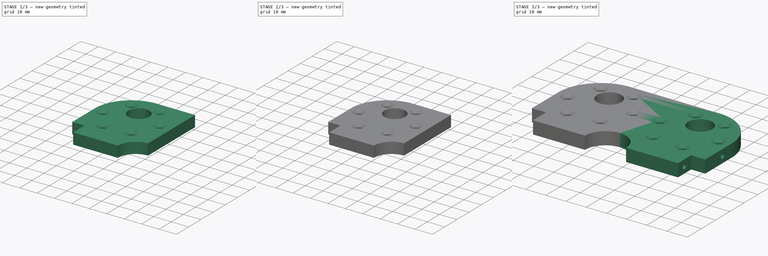
[diagram: build sequence overview — one tinted view per stage of 3, left to right]
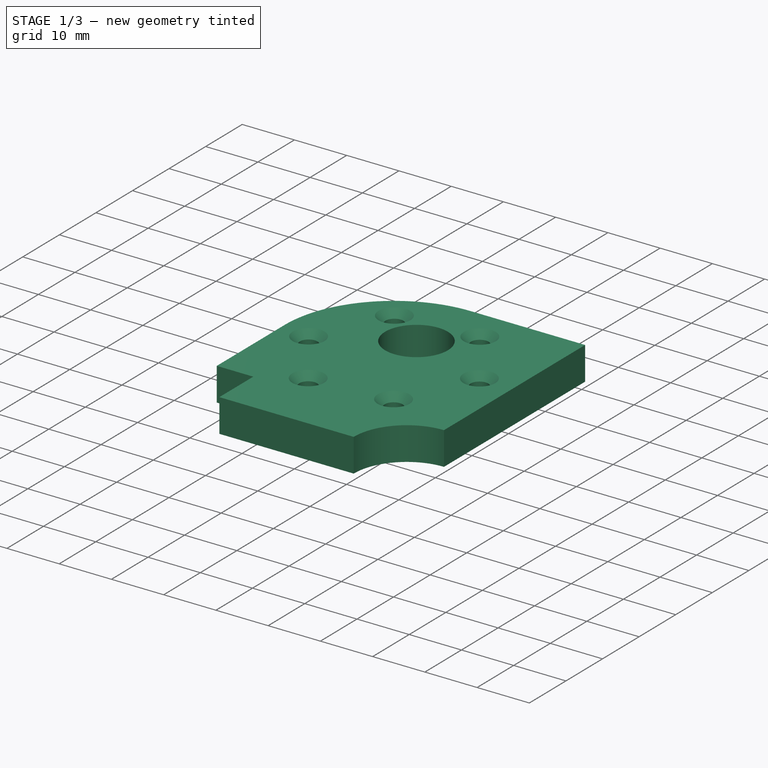
[diagram: stage 1 of 3 — iso view after this stage's code; geometry added in this stage tinted green]
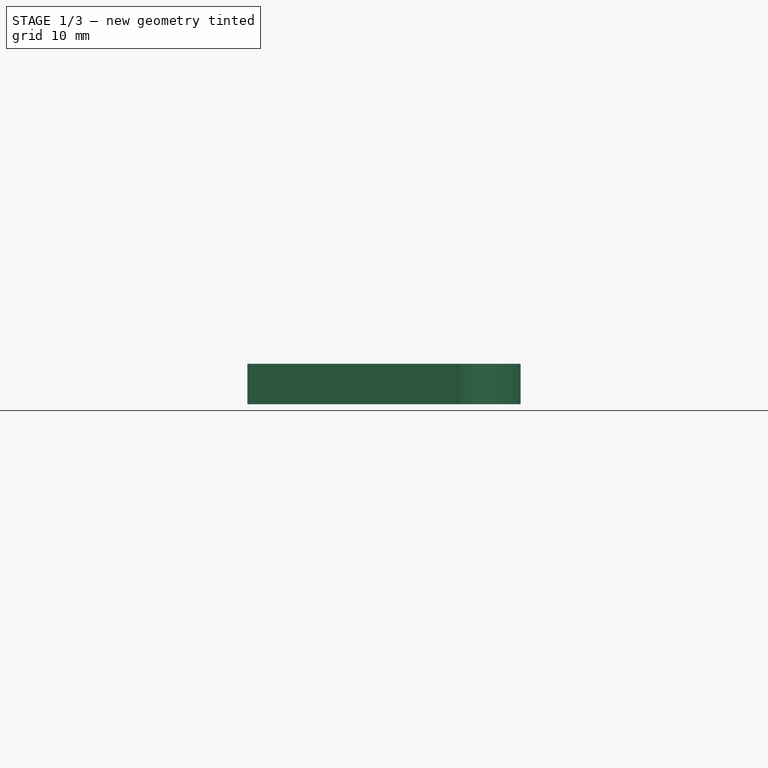
[diagram: stage 1 of 3 — front view after this stage's code; geometry added in this stage tinted green]
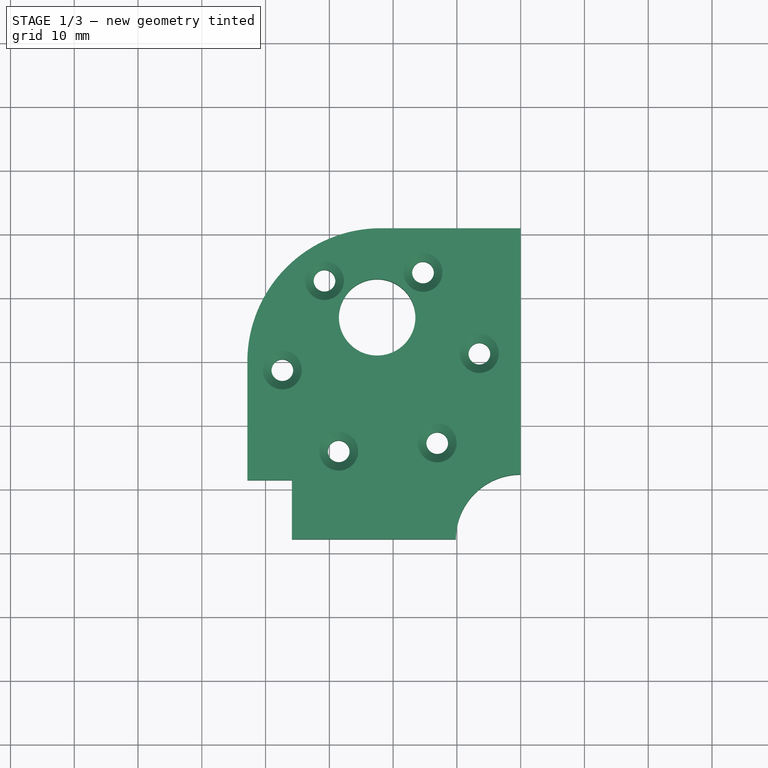
[diagram: stage 1 of 3 — top view after this stage's code; geometry added in this stage tinted green]
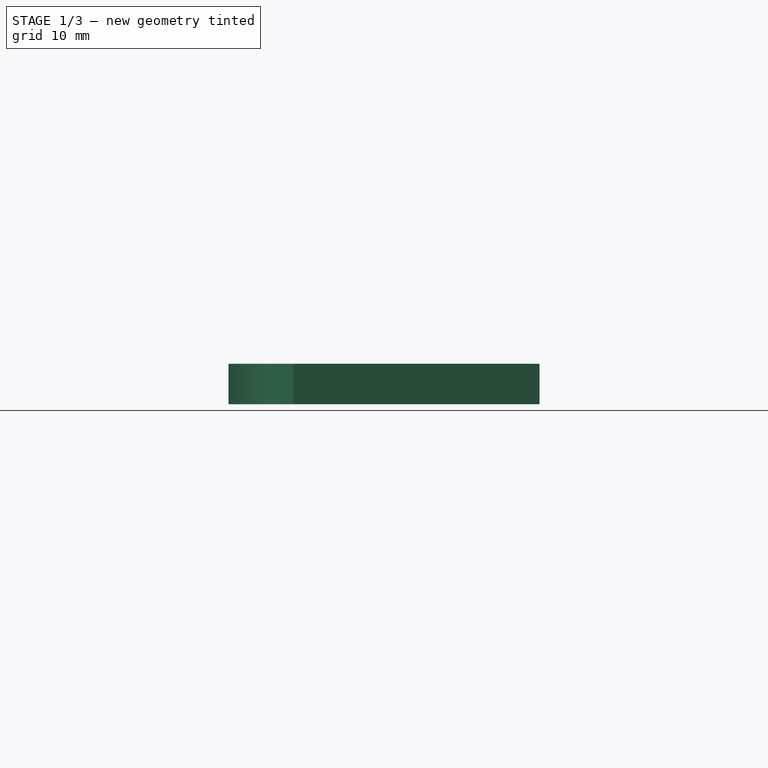
[diagram: stage 1 of 3 — right view after this stage's code; geometry added in this stage tinted green]
FCSTD DOCUMENT  (FreeCAD 1.0R39109 (Git))
Label: rear bracket
License: All rights reserved
LicenseURL: https://en.wikipedia.org/wiki/All_rights_reserved
objects: Sketcher::SketchObject×5, PartDesign::Hole×4, PartDesign::Pad×1, PartDesign::Mirrored×1, PartDesign::Body×1
note: 28 computed .brp shape members not serialized (recipe doc carries the construction recipe); baked Part::Feature solids carry a one-line shape summary decoded from their .brp

FEATURE [Sketcher::SketchObject] Sketch
  ArcFitTolerance = 1e-06
  AttachmentSupport = -> [XY_Plane]
  FullyConstrained = true
  MakeInternals = false
  MapMode = 5
  sketch-geometry (11):
    g0: Circle [constr] CenterX=-21.9225 CenterY=0 CenterZ=0 NormalX=0 NormalY=0 NormalZ=1 AngleXU=0 Radius=18.4
    g1: LineSegment StartX=-35.8775 StartY=-27.813 StartZ=0 EndX=-35.8775 EndY=-18.542 EndZ=0
    g2: LineSegment StartX=-35.8775 StartY=-18.542 StartZ=0 EndX=-42.8625 EndY=-18.542 EndZ=0
    g3: LineSegment StartX=-42.8625 StartY=-18.542 StartZ=0 EndX=-42.8625 EndY=3.6e-15 EndZ=0
    g4: ArcOfCircle CenterX=-21.9225 CenterY=0 CenterZ=0 NormalX=0 NormalY=0 NormalZ=1 AngleXU=0 Radius=20.94 StartAngle=1.5708 EndAngle=3.14159
    g5: LineSegment StartX=-21.9225 StartY=20.94 StartZ=0 EndX=0 EndY=20.94 EndZ=0
    g6: Circle CenterX=-22.5044 CenterY=6.97577 CenterZ=0 NormalX=0 NormalY=0 NormalZ=1 AngleXU=0 Radius=6
    g7: LineSegment [constr] StartX=-22.5044 StartY=6.97577 StartZ=0 EndX=-58.42 EndY=6.97577 EndZ=0
    g8: LineSegment StartX=-35.8775 StartY=-27.813 StartZ=0 EndX=-10.16 EndY=-27.813 EndZ=0
    g9: ArcOfCircle CenterX=0 CenterY=-27.813 CenterZ=0 NormalX=0 NormalY=0 NormalZ=1 AngleXU=0 Radius=10.16 StartAngle=1.5708 EndAngle=3.14159
    g10: LineSegment StartX=0 StartY=20.94 StartZ=0 EndX=0 EndY=-17.653 EndZ=0
  constraints (33):
    c: PointOnObject(g0,g-1)
    c: Vertical(g1)
    c: Coincident(g2,g1)
    c: Horizontal(g2)
    c: Coincident(g3,g2)
    c: PointOnObject(g3,g-1)
    c: Vertical(g3)
    c: Coincident(g4,g3)
    c: PointOnObject(g5,g-2)
    c: Horizontal(g5)
    c: Coincident(g7,g6)
    c: Horizontal(g7)
    c: DistanceX(g7,g-1) = 58.42
    c: DistanceX(g7,g7) = 35.9156
    c: Coincident(g8,g1)
    c: Horizontal(g8)
    c: DistanceX(g2,g2) = 6.985
    c: DistanceY(g1,g1) = 9.271
    c: Diameter(g6) = 12
    c: Distance(g6,g0) = 7
    c: Tangent(g5,g4) = 1.5708
    c: Distance(g-2,g1) = 35.8775
    c: Diameter(g0) = 36.8
    c: Distance(g0,g4) = 2.54
    c: Distance(g0,g2) = 18.542
    c: Coincident(g8,g9)
    c: PointOnObject(g9,g8)
    c: Coincident(g4,g0)
    c: Coincident(g10,g5)
    c: Coincident(g10,g9)
    c: Vertical(g10)
    c: Radius(g9) = 10.16
    c: PointOnObject(g9,g-2)
FEATURE [PartDesign::Pad] Pad
  Direction = (0,0,1)
  Length = 6.35
  Length2 = 10
  Profile = -> Sketch
  ReferenceAxis = -> Sketch [N_Axis]
  Refine = true
  Suppressed = false
  Type = 0
FEATURE [Sketcher::SketchObject] Sketch002
  ArcFitTolerance = 1e-06
  FullyConstrained = true
  MakeInternals = false
  MapMode = 5
  Placement = pos=(-42.8625,0,0) rot=(0.57735,-0.57735,-0.57735;2.0944rad)
  sketch-geometry (3):
    g0: Circle CenterX=6.28849 CenterY=3.175 CenterZ=0 NormalX=0 NormalY=0 NormalZ=1 AngleXU=0 Radius=1.5
    g1: LineSegment [constr] StartX=6.28849 StartY=6.35 StartZ=0 EndX=6.28849 EndY=0 EndZ=0
    g2: GeomPoint [constr] X=1.28849 Y=4.7 Z=0
  constraints (7):
    c: Diameter(g0) = 3
    c: PointOnObject(g1,g-4)
    c: PointOnObject(g1,g-1)
    c: Vertical(g1)
    c: Symmetric(g1,g1,g0)
    c: Symmetric(g-5,g-5,g2)
    c: Distance(g2,g1) = 5
FEATURE [Sketcher::SketchObject] Sketch001
  ArcFitTolerance = 1e-06
  AttachmentSupport = -> [Pad]
  ExternalGeometry = -> [Pad]
  FullyConstrained = true
  MakeInternals = false
  MapMode = 5
  Placement = pos=(0,0,6.35) rot=(0,0,1;0rad)
  sketch-geometry (16):
    g0: Circle [constr] CenterX=-21.9225 CenterY=0 CenterZ=0 NormalX=0 NormalY=0 NormalZ=1 AngleXU=0 Radius=15.5
    g1: LineSegment [constr] StartX=-21.9225 StartY=20.94 StartZ=0 EndX=-21.9225 EndY=0 EndZ=0
    g2: LineSegment [constr] StartX=-15.3152 StartY=14.0212 StartZ=0 EndX=-30.7615 EndY=12.7327 EndZ=0
    g3: LineSegment [constr] StartX=-30.7615 StartY=12.7327 StartZ=0 EndX=-37.3689 EndY=-1.28849 EndZ=0
    g4: LineSegment [constr] StartX=-37.3689 StartY=-1.28849 StartZ=0 EndX=-28.5298 EndY=-14.0212 EndZ=0
    g5: LineSegment [constr] StartX=-28.5298 StartY=-14.0212 StartZ=0 EndX=-13.0835 EndY=-12.7327 EndZ=0
    g6: LineSegment [constr] StartX=-13.0835 StartY=-12.7327 StartZ=0 EndX=-6.47615 EndY=1.28849 EndZ=0
    g7: LineSegment [constr] StartX=-6.47615 StartY=1.28849 StartZ=0 EndX=-15.3152 EndY=14.0212 EndZ=0
    g8: Circle [constr] CenterX=-21.9225 CenterY=0 CenterZ=0 NormalX=0 NormalY=0 NormalZ=1 AngleXU=0 Radius=15.5
    g9: LineSegment [constr] StartX=-21.9225 StartY=0 StartZ=0 EndX=-23.0384 EndY=13.3769 EndZ=0
    g10: Circle CenterX=-30.7615 CenterY=12.7327 CenterZ=0 NormalX=0 NormalY=0 NormalZ=1 AngleXU=0 Radius=1.5
    g11: Circle CenterX=-15.3152 CenterY=14.0212 CenterZ=0 NormalX=0 NormalY=0 NormalZ=1 AngleXU=0 Radius=1.5
    g12: Circle CenterX=-6.47615 CenterY=1.28849 CenterZ=0 NormalX=0 NormalY=0 NormalZ=1 AngleXU=0 Radius=1.5
    g13: Circle CenterX=-13.0835 CenterY=-12.7327 CenterZ=0 NormalX=0 NormalY=0 NormalZ=1 AngleXU=0 Radius=1.5
    g14: Circle CenterX=-28.5298 CenterY=-14.0212 CenterZ=0 NormalX=0 NormalY=0 NormalZ=1 AngleXU=0 Radius=1.5
    g15: Circle CenterX=-37.3689 CenterY=-1.28849 CenterZ=0 NormalX=0 NormalY=0 NormalZ=1 AngleXU=0 Radius=1.5
  constraints (36):
    c: PointOnObject(g0,g-1)
    c: Coincident(g1,g-4)
    c: Coincident(g1,g0)
    c: Vertical(g1)
    c: Diameter(g0) = 31
    c: Coincident(g2,g3)
    c: Coincident(g3,g4)
    c: Coincident(g4,g5)
    c: Coincident(g5,g6)
    c: Coincident(g6,g7)
    c: Coincident(g7,g2)
    c: Equal(g2, g3-g7) x5
    c: PointOnObject(g2,g8)
    c: PointOnObject(g3,g8)
    c: PointOnObject(g4,g8)
    c: PointOnObject(g5,g8)
    c: PointOnObject(g6,g8)
    c: PointOnObject(g7,g8)
    c: Coincident(g8,g0)
    c: PointOnObject(g7,g0)
    c: Coincident(g9,g0)
    c: PointOnObject(g9,g2)
    c: PointOnObject(g-6,g9)
    c: Perpendicular(g9,g2)
    c: Coincident(g10,g2)
    c: Coincident(g11,g2)
    c: Coincident(g13,g5)
    c: Coincident(g14,g4)
    c: Coincident(g15,g3)
    c: Equal(g10,g11)
    c: Equal(g14,g15)
    c: Equal(g15,g10)
    c: Equal(g12,g11)
    c: Equal(g13,g12)
    c: Diameter(g11) = 3
    c: Coincident(g12,g6)
FEATURE [PartDesign::Hole] Hole
  BaseFeature = -> Pad
  CustomThreadClearance = 0
  Depth = 143.323
  DepthType = 1
  Diameter = 3.4
  DrillForDepth = false
  DrillPoint = 1
  DrillPointAngle = 118
  HoleCutCountersinkAngle = 90
  HoleCutCustomValues = false
  HoleCutDepth = 0
  HoleCutDiameter = 6.1
  HoleCutType = 2
  ModelThread = false
  Profile = -> Sketch001
  Refine = true
  Suppressed = false
  Tapered = false
  TaperedAngle = 90
  ThreadClass = 0
  ThreadDepth = 143.323
  ThreadDepthType = 0
  ThreadDirection = 0
  ThreadFit = 0
  ThreadSize = 9
  ThreadType = 1
  Threaded = false
  UseCustomThreadClearance = false
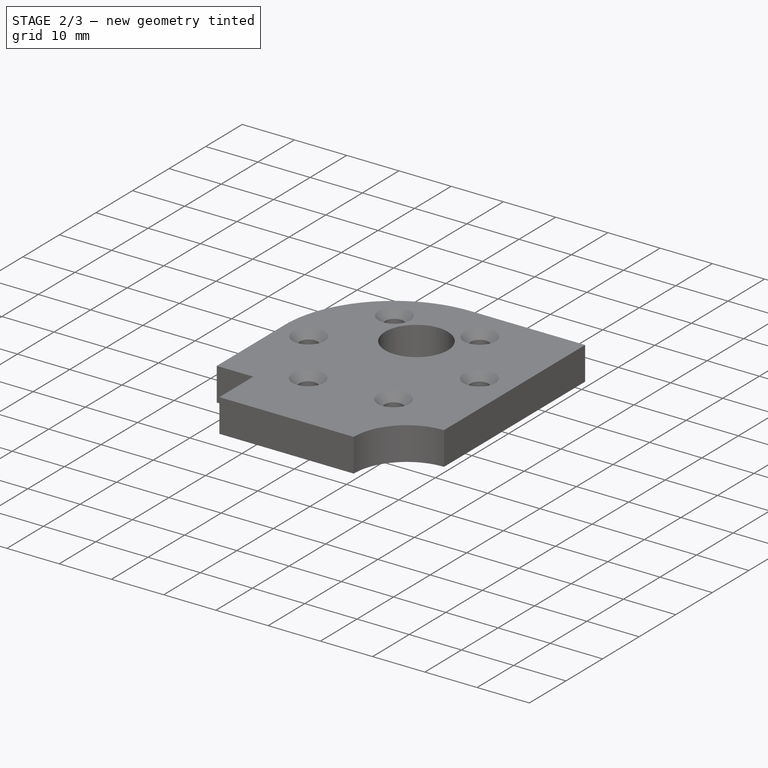
[diagram: stage 2 of 3 — iso view after this stage's code; geometry added in this stage tinted green]
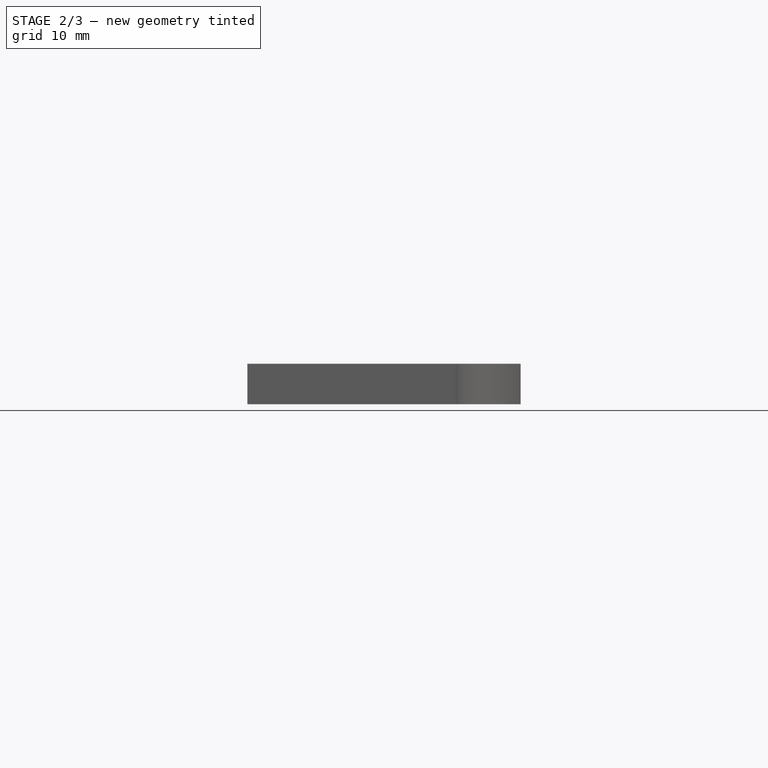
[diagram: stage 2 of 3 — front view after this stage's code; geometry added in this stage tinted green]
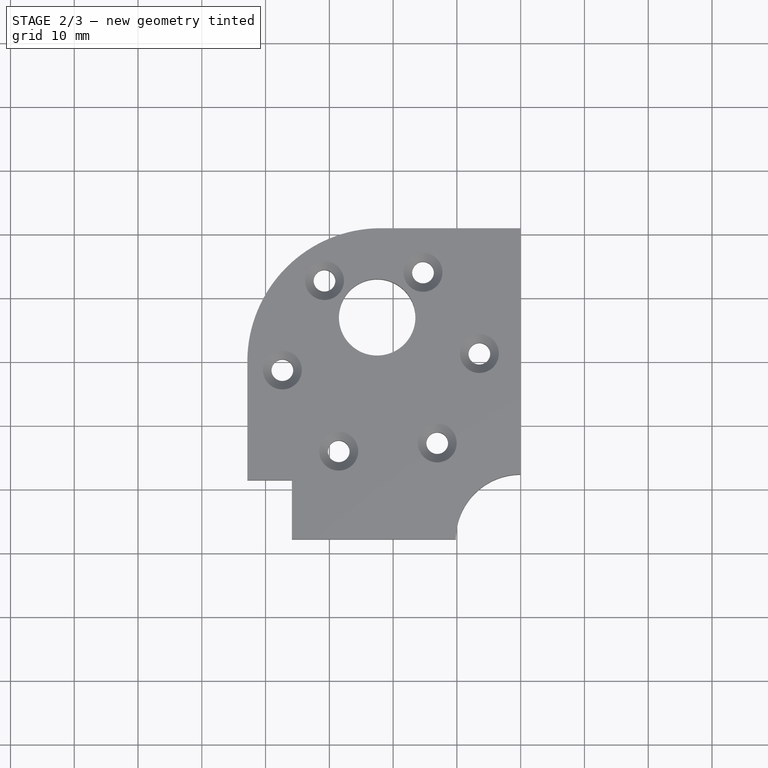
[diagram: stage 2 of 3 — top view after this stage's code; geometry added in this stage tinted green]
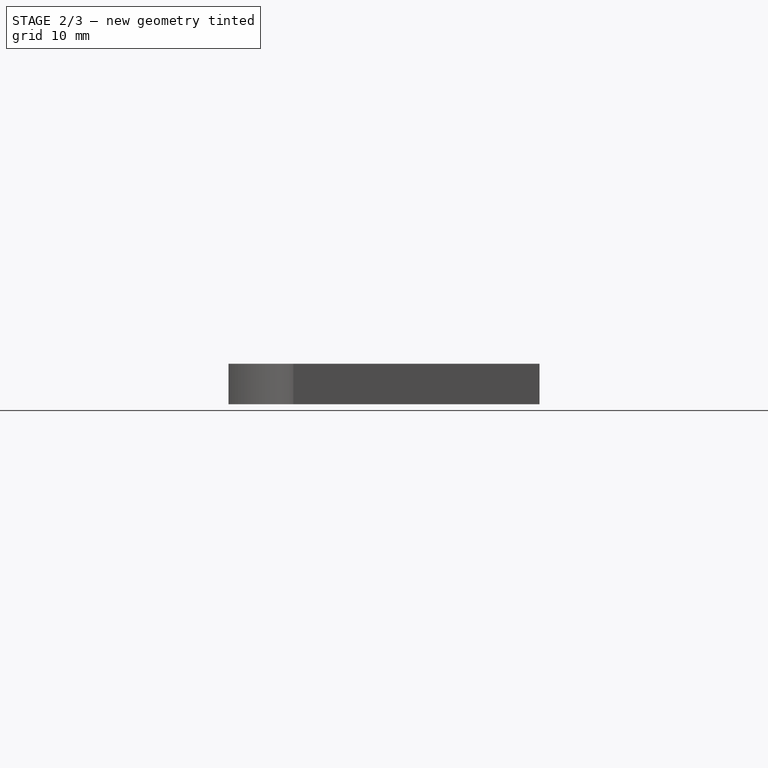
[diagram: stage 2 of 3 — right view after this stage's code; geometry added in this stage tinted green]
FEATURE [PartDesign::Hole] Hole001
  BaseFeature = -> Hole
  CustomThreadClearance = 0
  Depth = 7.874
  DepthType = 0
  Diameter = 2.5
  DrillForDepth = false
  DrillPoint = 1
  DrillPointAngle = 118
  HoleCutCountersinkAngle = 90
  HoleCutCustomValues = false
  HoleCutDepth = 0
  HoleCutDiameter = 0
  HoleCutType = 0
  ModelThread = false
  Profile = -> Sketch002
  Refine = true
  Suppressed = false
  Tapered = false
  TaperedAngle = 90
  ThreadClass = 0
  ThreadDepth = 7.874
  ThreadDepthType = 0
  ThreadDirection = 0
  ThreadFit = 0
  ThreadSize = 9
  ThreadType = 1
  Threaded = true
  UseCustomThreadClearance = false
FEATURE [Sketcher::SketchObject] Sketch003
  ArcFitTolerance = 1e-06
  AttachmentSupport = -> [Hole001]
  ExternalGeometry = -> [Hole001]
  FullyConstrained = true
  MakeInternals = false
  MapMode = 5
  Placement = pos=(-35.8775,0,0) rot=(0.57735,-0.57735,-0.57735;2.0944rad)
  sketch-geometry (2):
    g0: LineSegment [constr] StartX=18.542 StartY=0 StartZ=0 EndX=27.813 EndY=6.35 EndZ=0
    g1: Circle CenterX=23.1775 CenterY=3.175 CenterZ=0 NormalX=0 NormalY=0 NormalZ=1 AngleXU=0 Radius=1.5
  constraints (4):
    c: Coincident(g0,g-3)
    c: Coincident(g0,g-4)
    c: Symmetric(g0,g0,g1)
    c: Diameter(g1) = 3
FEATURE [PartDesign::Hole] Hole002
  BaseFeature = -> Hole001
  CustomThreadClearance = 0
  Depth = 7.874
  DepthType = 0
  Diameter = 2.5
  DrillForDepth = false
  DrillPoint = 1
  DrillPointAngle = 118
  HoleCutCountersinkAngle = 90
  HoleCutCustomValues = false
  HoleCutDepth = 0
  HoleCutDiameter = 0
  HoleCutType = 0
  ModelThread = false
  Profile = -> Sketch003
  Refine = true
  Suppressed = false
  Tapered = false
  TaperedAngle = 90
  ThreadClass = 0
  ThreadDepth = 7.874
  ThreadDepthType = 0
  ThreadDirection = 0
  ThreadFit = 0
  ThreadSize = 9
  ThreadType = 1
  Threaded = true
  UseCustomThreadClearance = false
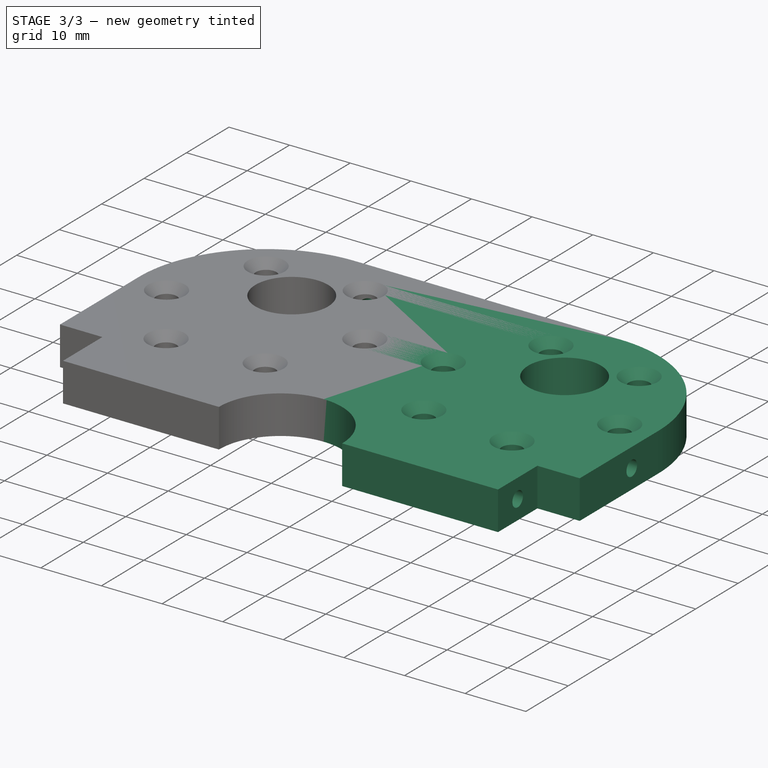
[diagram: stage 3 of 3 — iso view after this stage's code; geometry added in this stage tinted green]
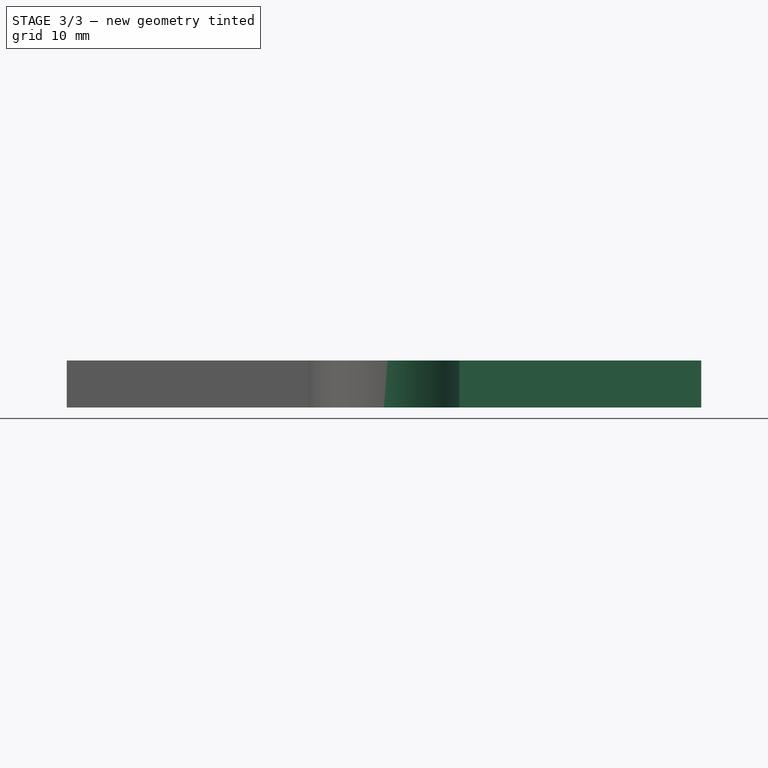
[diagram: stage 3 of 3 — front view after this stage's code; geometry added in this stage tinted green]
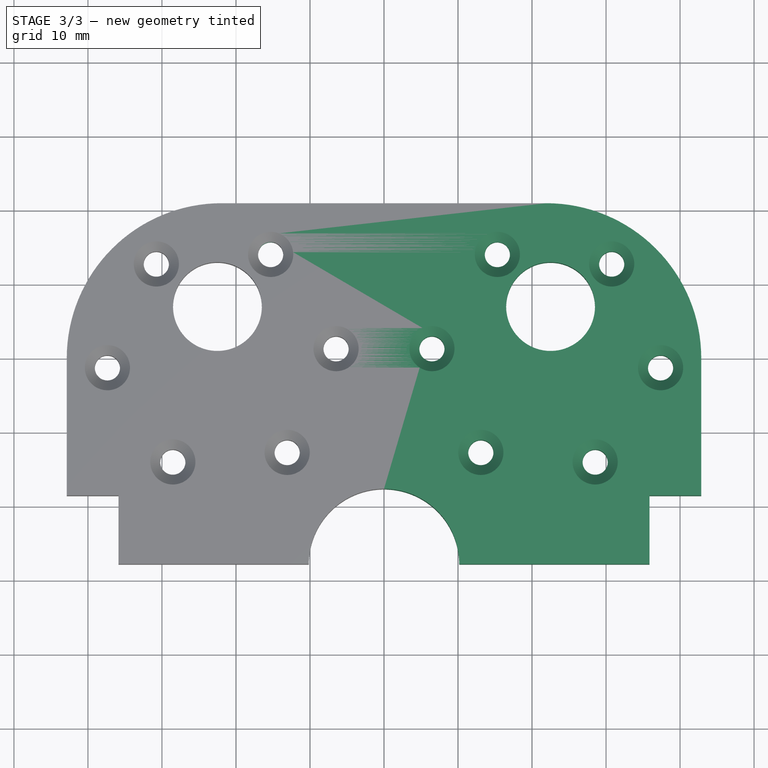
[diagram: stage 3 of 3 — top view after this stage's code; geometry added in this stage tinted green]
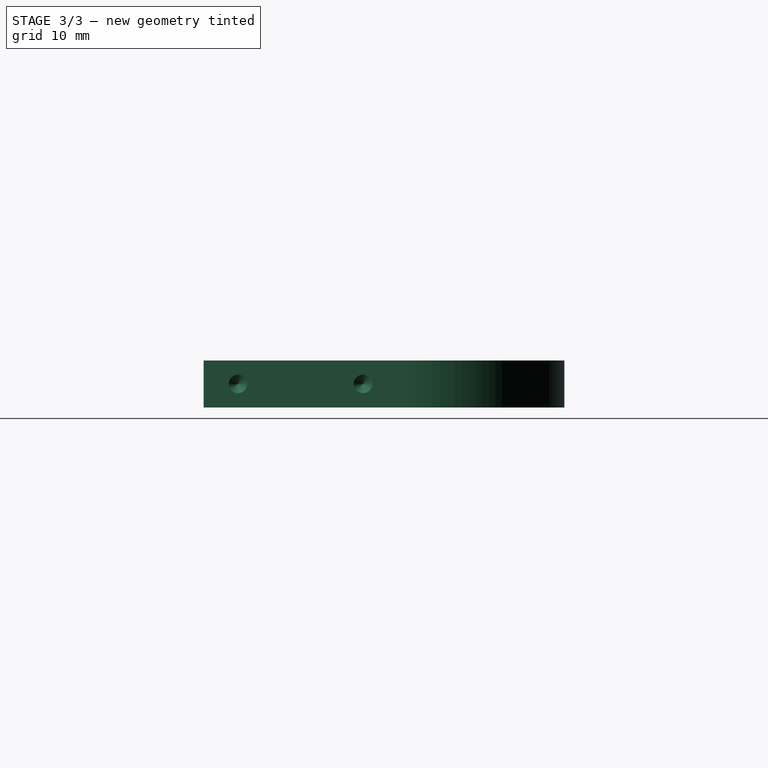
[diagram: stage 3 of 3 — right view after this stage's code; geometry added in this stage tinted green]
FEATURE [Sketcher::SketchObject] Sketch004
  ArcFitTolerance = 1e-06
  AttachmentSupport = -> [Hole002]
  ExternalGeometry = -> [Hole002]
  FullyConstrained = true
  MakeInternals = false
  MapMode = 5
  Placement = pos=(0,20.94,0) rot=(0,0.707107,0.707107;3.14159rad)
  sketch-geometry (2):
    g0: LineSegment [constr] StartX=0 StartY=3.175 StartZ=0 EndX=15.875 EndY=3.175 EndZ=0
    g1: Circle CenterX=15.875 CenterY=3.175 CenterZ=0 NormalX=0 NormalY=0 NormalZ=1 AngleXU=0 Radius=1.5
  constraints (5):
    c: Symmetric(g-3,g-3,g0)
    c: Horizontal(g0)
    c: Coincident(g1,g0)
    c: DistanceX(g0,g0) = 15.875
    c: Diameter(g1) = 3
FEATURE [PartDesign::Hole] Hole003
  BaseFeature = -> Hole002
  CustomThreadClearance = 0
  Depth = 6.096
  DepthType = 0
  Diameter = 2.5
  DrillForDepth = false
  DrillPoint = 1
  DrillPointAngle = 118
  HoleCutCountersinkAngle = 90
  HoleCutCustomValues = false
  HoleCutDepth = 0
  HoleCutDiameter = 3.556
  HoleCutType = 0
  ModelThread = false
  Profile = -> Sketch004
  Refine = true
  Suppressed = false
  Tapered = false
  TaperedAngle = 90
  ThreadClass = 0
  ThreadDepth = 6.096
  ThreadDepthType = 0
  ThreadDirection = 0
  ThreadFit = 0
  ThreadSize = 9
  ThreadType = 1
  Threaded = true
  UseCustomThreadClearance = false
FEATURE [PartDesign::Mirrored] Mirrored
  BaseFeature = -> Hole003
  MirrorPlane = -> Sketch004 [V_Axis]
  Originals = -> [Hole003]
  Refine = true
  Suppressed = false
  TransformMode = 1
FEATURE [PartDesign::Body] Body
  AllowCompound = false
  Group = -> [Sketch,Pad,Sketch001,Sketch002,Hole,Hole001,Sketch003,Hole002,Sketch004,Hole003,Mirrored]
  Origin = -> Origin
  Tip = -> Mirrored
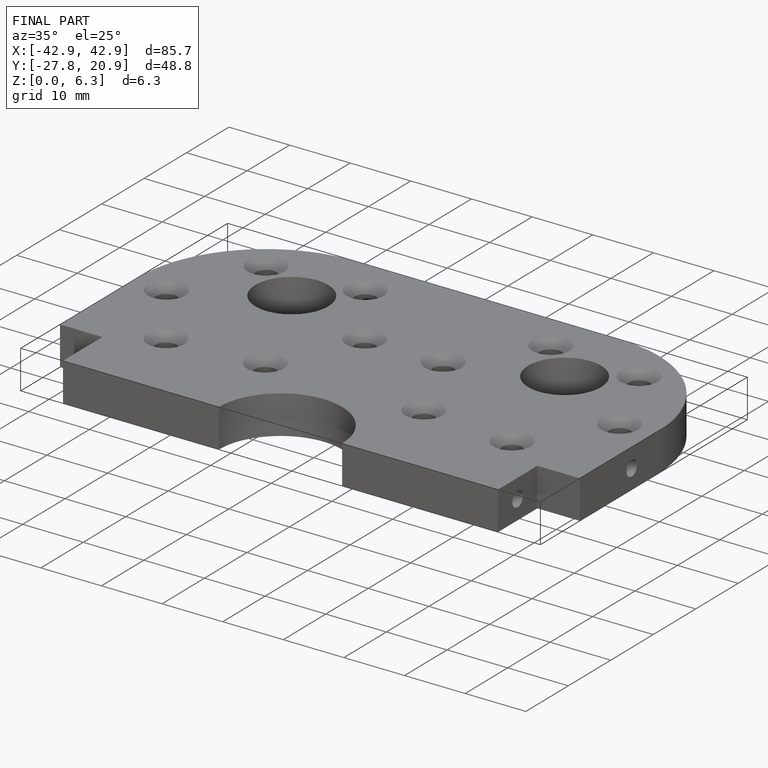
[diagram: finished part — iso view with bounding-box wireframe]
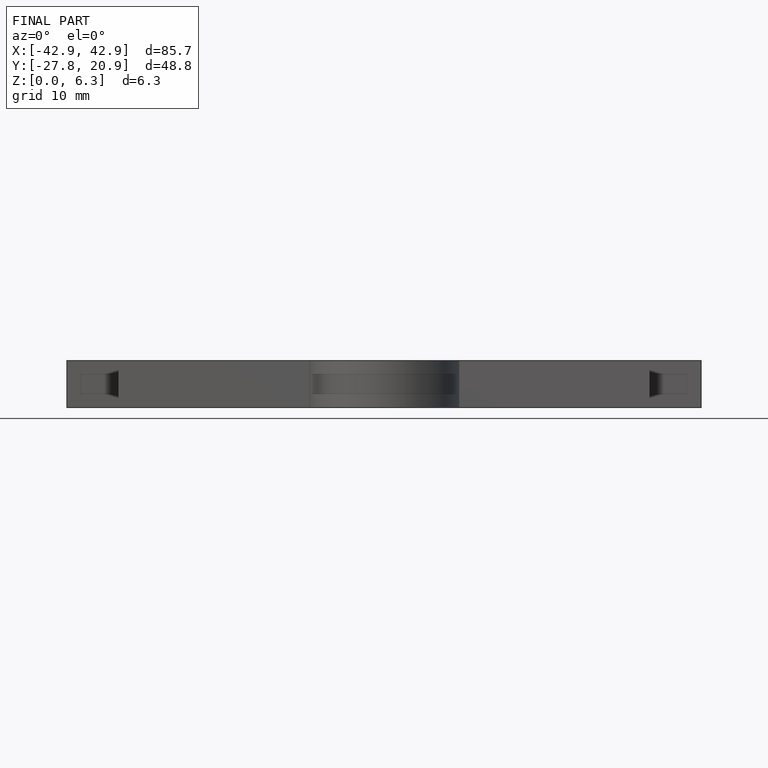
[diagram: finished part — front view with bounding-box wireframe]
